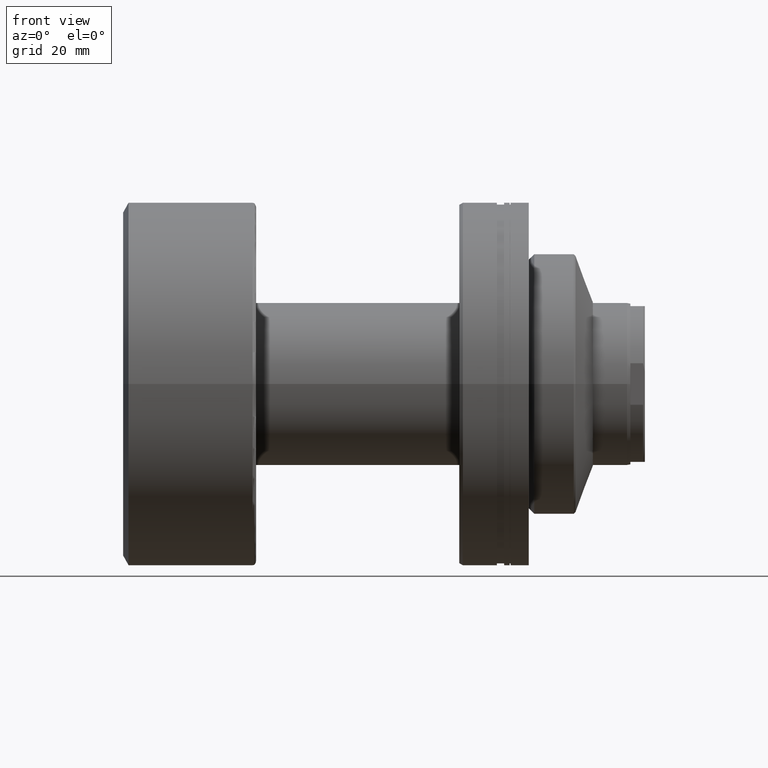
[diagram: clean part render]
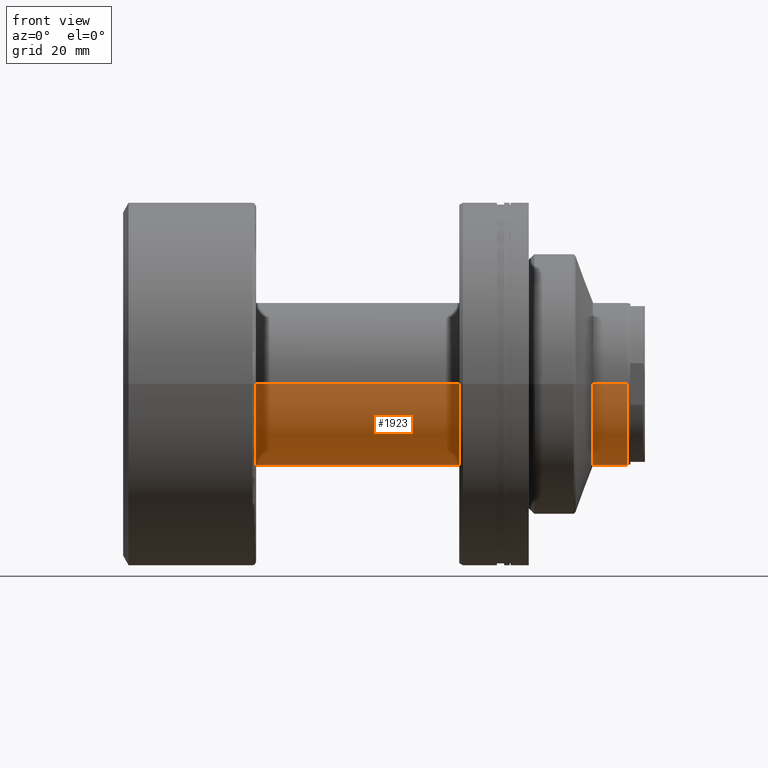
[diagram: same view with one face highlighted and labeled with its STEP entity id]
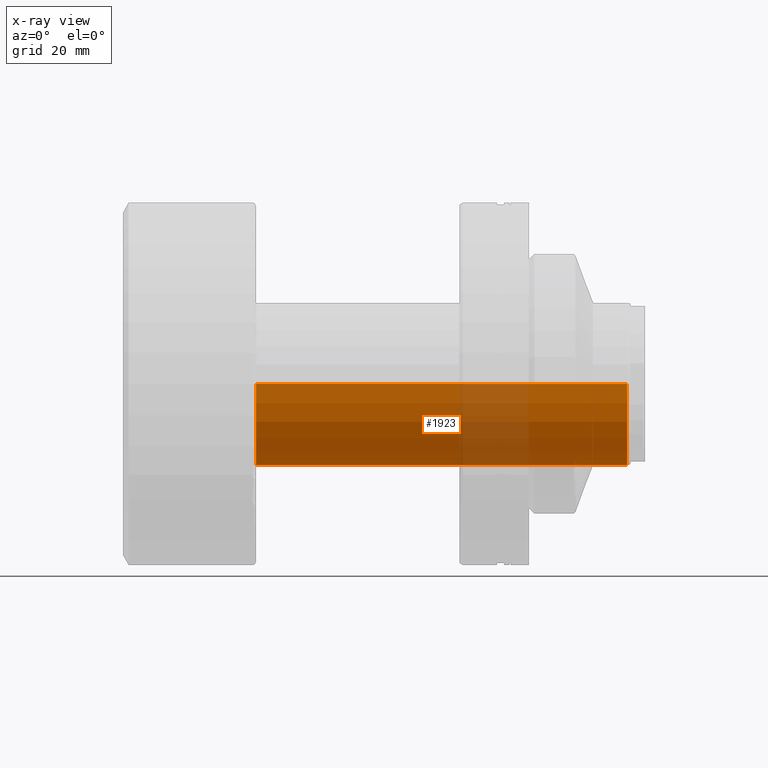
[diagram: x-ray of the same camera — body ghosted, the highlighted face saturated]
A machine part, front view. The second image highlights one B-rep face of the part: STEP entity #1923.
The next image is the same camera in x-ray: the body ghosted, the highlighted face saturated — about 19% of this face is hidden behind the body in this view.
In plain terms, the highlighted cylindrical surface (partial cylindrical patch) has radius 22.5 mm, axis along (-1, -0, -0).
Its self-contained STEP definition (entity closure, byte-faithful):
#3 = LINE ( 'NONE', #1498, #1772 ) ;
#50 = ORIENTED_EDGE ( 'NONE', *, *, #1151, .T. ) ;
#75 = DIRECTION ( 'NONE',  ( 0.000000000000000000, -1.000000000000000000, 0.000000000000000000 ) ) ;
#134 = LINE ( 'NONE', #816, #1521 ) ;
#139 = VERTEX_POINT ( 'NONE', #884 ) ;
#224 = VERTEX_POINT ( 'NONE', #870 ) ;
#289 = EDGE_CURVE ( 'NONE', #224, #139, #3, .T. ) ;
#359 = CARTESIAN_POINT ( 'NONE',  ( 36.70000000000000284, 22.50000000000000000, 2.755455298081550694E-15 ) ) ;
#523 = DIRECTION ( 'NONE',  ( -1.000000000000000000, -1.069542322069065801E-17, -0.000000000000000000 ) ) ;
#574 = AXIS2_PLACEMENT_3D ( 'NONE', #1732, #523, #1956 ) ;
#601 = VERTEX_POINT ( 'NONE', #359 ) ;
#623 = CARTESIAN_POINT ( 'NONE',  ( 0.000000000000000000, 0.000000000000000000, 0.000000000000000000 ) ) ;
#697 = AXIS2_PLACEMENT_3D ( 'NONE', #1149, #1849, #75 ) ;
#796 = VERTEX_POINT ( 'NONE', #1560 ) ;
#797 = EDGE_CURVE ( 'NONE', #796, #601, #134, .T. ) ;
#805 = AXIS2_PLACEMENT_3D ( 'NONE', #623, #1183, #1859 ) ;
#816 = CARTESIAN_POINT ( 'NONE',  ( -2.406470224655408490E-16, 22.50000000000009592, 2.755455298081556216E-15 ) ) ;
#857 = EDGE_CURVE ( 'NONE', #601, #139, #949, .T. ) ;
#870 = CARTESIAN_POINT ( 'NONE',  ( 139.0667575123237896, -22.50000000000019185, 0.000000000000000000 ) ) ;
#884 = CARTESIAN_POINT ( 'NONE',  ( 36.70000000000000284, -22.50000000000000000, 0.000000000000000000 ) ) ;
#949 = CIRCLE ( 'NONE', #697, 22.50000000000000000 ) ;
#1145 = EDGE_LOOP ( 'NONE', ( #1488, #50, #1711, #1837 ) ) ;
#1149 = CARTESIAN_POINT ( 'NONE',  ( 36.70000000000000284, 3.925220321993471577E-16, 0.000000000000000000 ) ) ;
#1151 = EDGE_CURVE ( 'NONE', #796, #224, #2206, .T. ) ;
#1160 = CYLINDRICAL_SURFACE ( 'NONE', #805, 22.50000000000009592 ) ;
#1183 = DIRECTION ( 'NONE',  ( -1.000000000000000000, -1.069542322069065801E-17, -0.000000000000000000 ) ) ;
#1488 = ORIENTED_EDGE ( 'NONE', *, *, #797, .F. ) ;
#1498 = CARTESIAN_POINT ( 'NONE',  ( 2.406470224655408490E-16, -22.50000000000009592, 0.000000000000000000 ) ) ;
#1521 = VECTOR ( 'NONE', #1539, 1000.000000000000000 ) ;
#1539 = DIRECTION ( 'NONE',  ( -1.000000000000000000, -1.069542322069065801E-17, -0.000000000000000000 ) ) ;
#1560 = CARTESIAN_POINT ( 'NONE',  ( 139.0667575123237896, 22.50000000000018829, 2.755455298081568049E-15 ) ) ;
#1626 = DIRECTION ( 'NONE',  ( -1.000000000000000000, -1.069542322069065801E-17, -0.000000000000000000 ) ) ;
#1711 = ORIENTED_EDGE ( 'NONE', *, *, #289, .T. ) ;
#1732 = CARTESIAN_POINT ( 'NONE',  ( 139.0667575123237896, 1.487377827523464785E-15, 0.000000000000000000 ) ) ;
#1772 = VECTOR ( 'NONE', #1626, 1000.000000000000000 ) ;
#1837 = ORIENTED_EDGE ( 'NONE', *, *, #857, .F. ) ;
#1849 = DIRECTION ( 'NONE',  ( -1.000000000000000000, -1.069542322069065801E-17, -0.000000000000000000 ) ) ;
#1859 = DIRECTION ( 'NONE',  ( 1.069542322069065955E-17, -1.000000000000000000, 0.000000000000000000 ) ) ;
#1923 = ADVANCED_FACE ( 'NONE', ( #2202 ), #1160, .T. ) ;
#1956 = DIRECTION ( 'NONE',  ( 0.000000000000000000, -1.000000000000000000, 0.000000000000000000 ) ) ;
#2202 = FACE_OUTER_BOUND ( 'NONE', #1145, .T. ) ;
#2206 = CIRCLE ( 'NONE', #574, 22.50000000000019185 ) ;